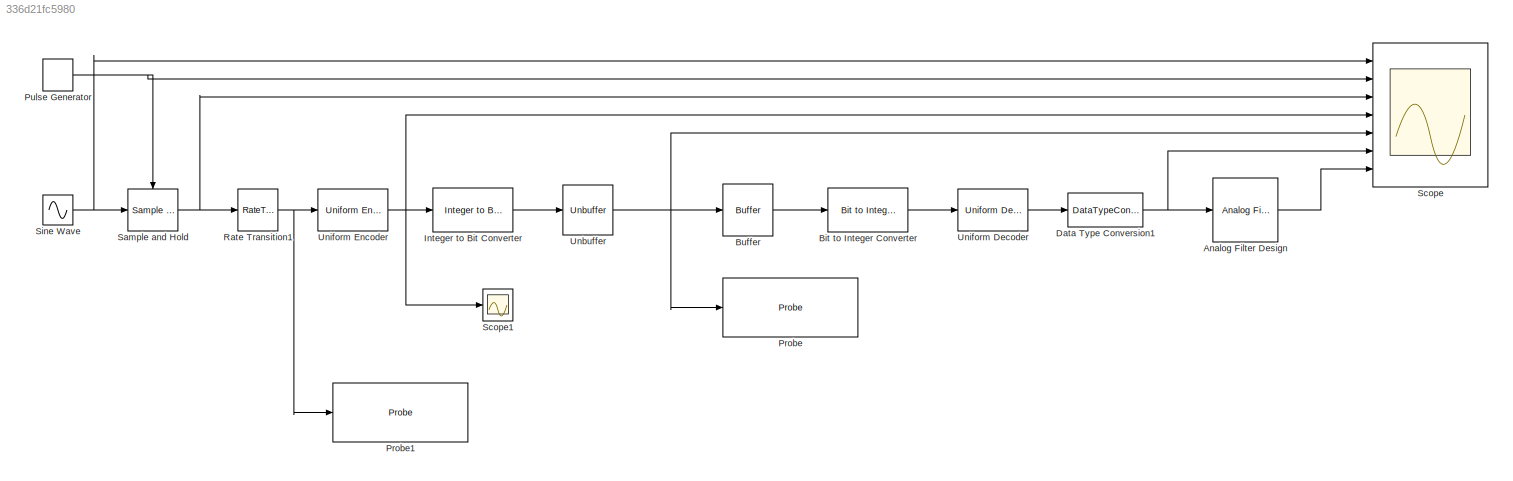
MODEL slx_336d21fc5980
KIND model
CONFIG AbsTol = auto
CONFIG EnableMultiTasking = off
CONFIG FixedStep = auto
CONFIG MaxStep = auto
CONFIG MinStep = auto
CONFIG RelTol = 1e-3
CONFIG SampleTimeConstraint = Unconstrained
CONFIG Solver = VariableStepAuto
CONFIG SolverName = VariableStepAuto
CONFIG StartTime = 0.0
CONFIG StopTime = 5
BLOCK [Reference] Analog Filter Design  REF=dsparch4/Analog
Filter Design
  Ports = [1, 1]
  SourceBlock = dsparch4/Analog\nFilter Design
  SourceProductBaseCode = DS
  SourceProductName = DSP System Toolbox
  SourceType = Analog Filter Design
BLOCK [Reference] Bit to Integer Converter  REF=commutil2/Bit to Integer
Converter
  Ports = [1, 1]
  SourceBlock = commutil2/Bit to Integer\nConverter
  SourceProductBaseCode = CM
  SourceProductName = Communications System Toolbox
  SourceType = Bit to Integer Converter
BLOCK [Buffer] Buffer
  N = 8
  OutputFrames = off
BLOCK [DataTypeConversion] Data Type Conversion1
  OutDataTypeStr = double
  RndMeth = Floor
  SaturateOnIntegerOverflow = off
BLOCK [Reference] Integer to Bit Converter  REF=commutil2/Integer to Bit
Converter
  Ports = [1, 1]
  SourceBlock = commutil2/Integer to Bit\nConverter
  SourceProductBaseCode = CM
  SourceProductName = Communications System Toolbox
  SourceType = Integer to Bit Converter
BLOCK [Probe] Probe
  Ports = [1, 4]
  ProbeComplexityDataType = Same as input
  ProbeDimensionsDataType = Same as input
  ProbeSampleTimeDataType = Same as input
  ProbeSignalDimensions = on
  ProbeWidthDataType = Same as input
BLOCK [Probe] Probe1
  Ports = [1, 4]
  ProbeComplexityDataType = Same as input
  ProbeDimensionsDataType = Same as input
  ProbeSampleTimeDataType = Same as input
  ProbeSignalDimensions = on
  ProbeWidthDataType = Same as input
BLOCK [DiscretePulseGenerator] Pulse Generator
  Period = 1/8000
  Ports = [0, 1]
  PulseType = Time based
  PulseWidth = 50
BLOCK [RateTransition] Rate Transition1
  OutPortSampleTime = 1/8000
BLOCK [Reference] Sample and Hold  REF=dspsigops/Sample
and Hold
  Ports = [1, 1, 0, 1]
  SourceBlock = dspsigops/Sample\nand Hold
  SourceProductBaseCode = DS
  SourceProductName = DSP System Toolbox
  SourceType = Sample and Hold
BLOCK [Scope] Scope
  Floating = off
  NumInputPorts = 7
  Ports = [7]
  ScopeSpecificationString = Simulink.scopes.TimeScopeBlockCfg('CurrentConfiguration', extmgr.ConfigurationSet(extmgr.Configuration('Core','General UI',true),extmgr.Configuration('Core','Source UI',true),extmgr.Configuration('Sources','WiredSimulink',true),extmgr.Configuration('Visuals','Time Domain',true,'SerializedDisplays',{struct('MinYLimReal','-1.25','MaxYLimReal','1.25','YLabelReal','','MinYLimMag','0.00000','MaxYLimMag...<+5621ch>
BLOCK [Scope] Scope1
  Floating = off
  NumInputPorts = 1
  Ports = [1]
  ScopeSpecificationString = Simulink.scopes.TimeScopeBlockCfg('CurrentConfiguration', extmgr.ConfigurationSet(extmgr.Configuration('Core','General UI',true),extmgr.Configuration('Core','Source UI',true),extmgr.Configuration('Sources','WiredSimulink',true,'DataLoggingVariableName','ScopeData1'),extmgr.Configuration('Visuals','Time Domain',true),extmgr.Configuration('Tools','Plot Navigation',true),extmgr.Configuration('Tools',...<+40ch>
BLOCK [Sin] Sine Wave
  Frequency = 3000*2*pi
  Ports = [0, 1]
  SampleTime = 1/64000
BLOCK [Unbuffer] Unbuffer
  Ports = [1, 1]
BLOCK [Reference] Uniform Decoder  REF=dspquant2/Uniform
Decoder
  Ports = [1, 1]
  SourceBlock = dspquant2/Uniform\nDecoder
  SourceProductBaseCode = DS
  SourceProductName = DSP System Toolbox
  SourceType = Uniform Decoder
BLOCK [Reference] Uniform Encoder  REF=dspquant2/Uniform
Encoder
  Ports = [1, 1]
  SourceBlock = dspquant2/Uniform\nEncoder
  SourceProductBaseCode = DS
  SourceProductName = DSP System Toolbox
  SourceType = Uniform Encoder
LINE Analog Filter Design:1 -> Scope:7
LINE Bit to Integer Converter:1 -> Uniform Decoder:1
LINE Buffer:1 -> Bit to Integer Converter:1
NET Data Type Conversion1:1 -> Analog Filter Design:1, Scope:6
LINE Integer to Bit Converter:1 -> Unbuffer:1
NET Pulse Generator:1 -> Sample and Hold:trigger, Scope:2
NET Rate Transition1:1 -> Probe1:1, Uniform Encoder:1
NET Sample and Hold:1 -> Rate Transition1:1, Scope:3
NET Sine Wave:1 -> Sample and Hold:1, Scope:1
NET Unbuffer:1 -> Buffer:1, Probe:1, Scope:5
LINE Uniform Decoder:1 -> Data Type Conversion1:1
NET Uniform Encoder:1 -> Integer to Bit Converter:1, Scope1:1, Scope:4
note: NET lines group one-source signal fan-out (src -> all destinations, sorted); 1:1 wires keep LINE
